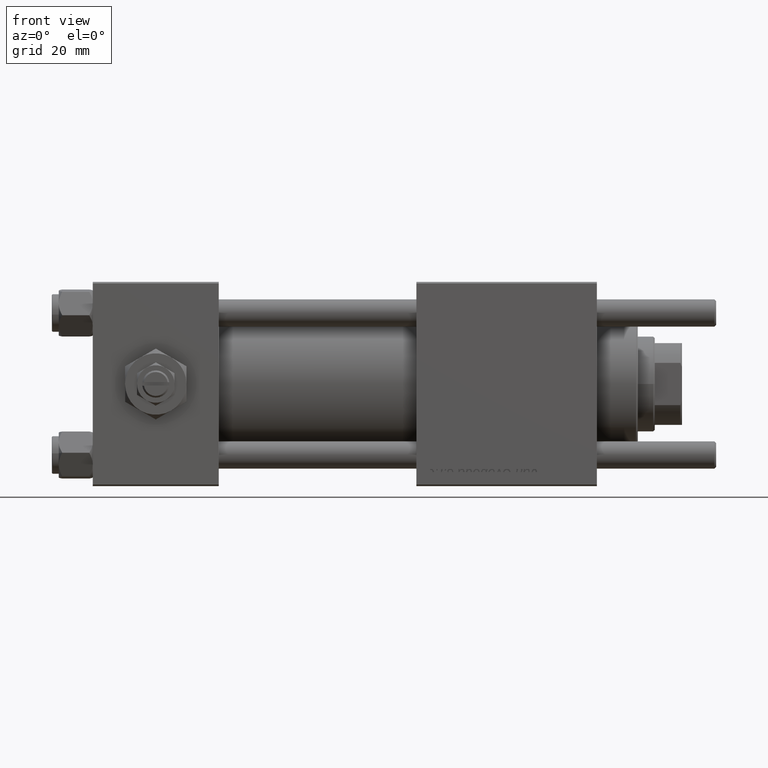
[diagram: clean part render]
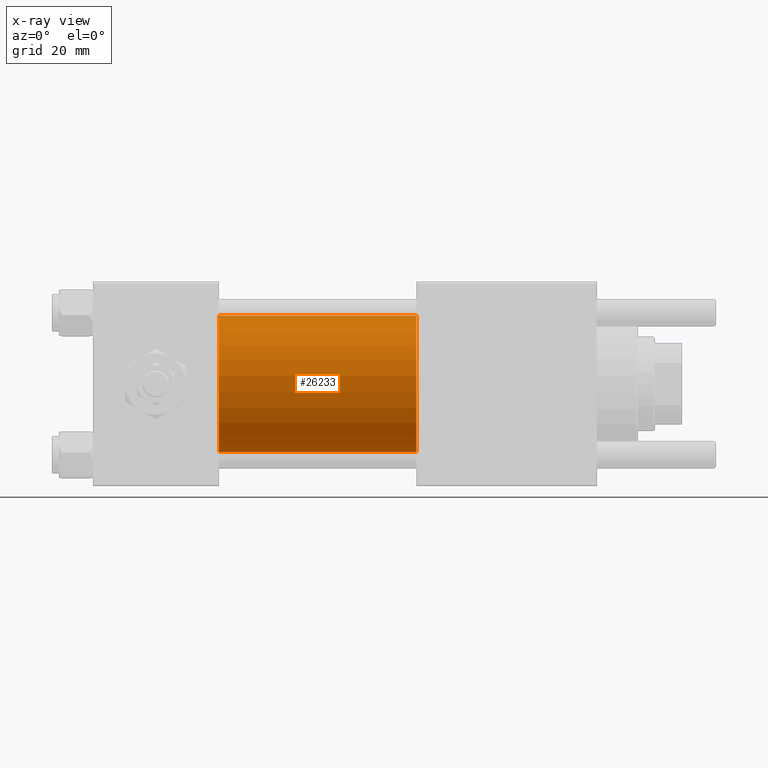
[diagram: x-ray — body ghosted, one internal face saturated and labeled with its STEP entity id]
A machine part, front view, then the same camera in x-ray: the body is ghosted and one INTERNAL B-rep face — a face not visible from any outside direction — is saturated and labeled: STEP entity #26233.
In plain terms, the highlighted cylindrical surface (partial cylindrical patch) has radius 20 mm, axis along (-1, -0, -0).
Its self-contained STEP definition (entity closure, byte-faithful):
#475 = CARTESIAN_POINT ( 'NONE',  ( 95.00000000000000000, -2.602085213965210642E-15, 0.000000000000000000 ) ) ;
#2964 = CARTESIAN_POINT ( 'NONE',  ( 95.00000000000000000, -1.527916156705046464E-16, -20.00000000000000000 ) ) ;
#4657 = DIRECTION ( 'NONE',  ( 1.000000000000000000, 0.000000000000000000, 0.000000000000000000 ) ) ;
#5183 = DIRECTION ( 'NONE',  ( 0.000000000000000000, 0.000000000000000000, 1.000000000000000000 ) ) ;
#6607 = VECTOR ( 'NONE', #53486, 1000.000000000000000 ) ;
#8177 = AXIS2_PLACEMENT_3D ( 'NONE', #475, #4657, #50820 ) ;
#8296 = VERTEX_POINT ( 'NONE', #53720 ) ;
#12144 = CARTESIAN_POINT ( 'NONE',  ( 95.00000000000000000, -2.602085213965210642E-15, 20.00000000000000000 ) ) ;
#12916 = VERTEX_POINT ( 'NONE', #12144 ) ;
#15355 = EDGE_CURVE ( 'NONE', #40025, #8296, #25478, .T. ) ;
#15520 = CYLINDRICAL_SURFACE ( 'NONE', #25536, 20.00000000000000000 ) ;
#15786 = EDGE_CURVE ( 'NONE', #12916, #40025, #37487, .T. ) ;
#19844 = EDGE_CURVE ( 'NONE', #49097, #8296, #22495, .T. ) ;
#22399 = CARTESIAN_POINT ( 'NONE',  ( 95.00000000000000000, -2.602085213965210642E-15, 20.00000000000000000 ) ) ;
#22495 = CIRCLE ( 'NONE', #53691, 20.00000000000000000 ) ;
#25193 = DIRECTION ( 'NONE',  ( 0.000000000000000000, 0.000000000000000000, -1.000000000000000000 ) ) ;
#25478 = LINE ( 'NONE', #2964, #39368 ) ;
#25536 = AXIS2_PLACEMENT_3D ( 'NONE', #27707, #45769, #5183 ) ;
#26233 = ADVANCED_FACE ( 'NONE', ( #28589 ), #15520, .F. ) ;
#27707 = CARTESIAN_POINT ( 'NONE',  ( 95.00000000000000000, -2.602085213965210642E-15, 0.000000000000000000 ) ) ;
#28589 = FACE_OUTER_BOUND ( 'NONE', #51051, .T. ) ;
#30765 = EDGE_CURVE ( 'NONE', #12916, #49097, #50719, .T. ) ;
#34808 = ORIENTED_EDGE ( 'NONE', *, *, #30765, .F. ) ;
#37487 = CIRCLE ( 'NONE', #8177, 20.00000000000000000 ) ;
#39368 = VECTOR ( 'NONE', #57143, 1000.000000000000000 ) ;
#40025 = VERTEX_POINT ( 'NONE', #49679 ) ;
#42942 = CARTESIAN_POINT ( 'NONE',  ( 37.00000000000000000, -2.602085213965210642E-15, 20.00000000000000000 ) ) ;
#45769 = DIRECTION ( 'NONE',  ( -1.000000000000000000, -0.000000000000000000, -0.000000000000000000 ) ) ;
#46038 = ORIENTED_EDGE ( 'NONE', *, *, #15786, .T. ) ;
#49097 = VERTEX_POINT ( 'NONE', #42942 ) ;
#49489 = ORIENTED_EDGE ( 'NONE', *, *, #15355, .T. ) ;
#49679 = CARTESIAN_POINT ( 'NONE',  ( 95.00000000000000000, -1.527916156705046464E-16, -20.00000000000000000 ) ) ;
#50719 = LINE ( 'NONE', #22399, #6607 ) ;
#50820 = DIRECTION ( 'NONE',  ( 0.000000000000000000, 0.000000000000000000, -1.000000000000000000 ) ) ;
#51051 = EDGE_LOOP ( 'NONE', ( #46038, #49489, #57510, #34808 ) ) ;
#51275 = CARTESIAN_POINT ( 'NONE',  ( 37.00000000000000000, -2.602085213965210642E-15, 0.000000000000000000 ) ) ;
#53486 = DIRECTION ( 'NONE',  ( -1.000000000000000000, -0.000000000000000000, -0.000000000000000000 ) ) ;
#53691 = AXIS2_PLACEMENT_3D ( 'NONE', #51275, #55986, #25193 ) ;
#53720 = CARTESIAN_POINT ( 'NONE',  ( 37.00000000000000000, -1.527916156705046464E-16, -20.00000000000000000 ) ) ;
#55986 = DIRECTION ( 'NONE',  ( 1.000000000000000000, 0.000000000000000000, 0.000000000000000000 ) ) ;
#57143 = DIRECTION ( 'NONE',  ( -1.000000000000000000, -0.000000000000000000, -0.000000000000000000 ) ) ;
#57510 = ORIENTED_EDGE ( 'NONE', *, *, #19844, .F. ) ;